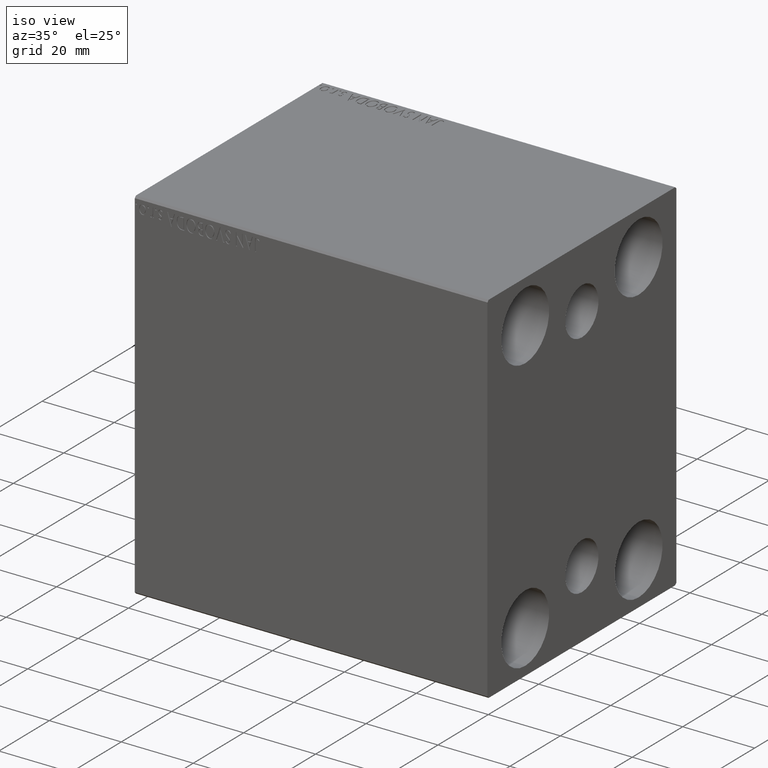
[diagram: clean part render]
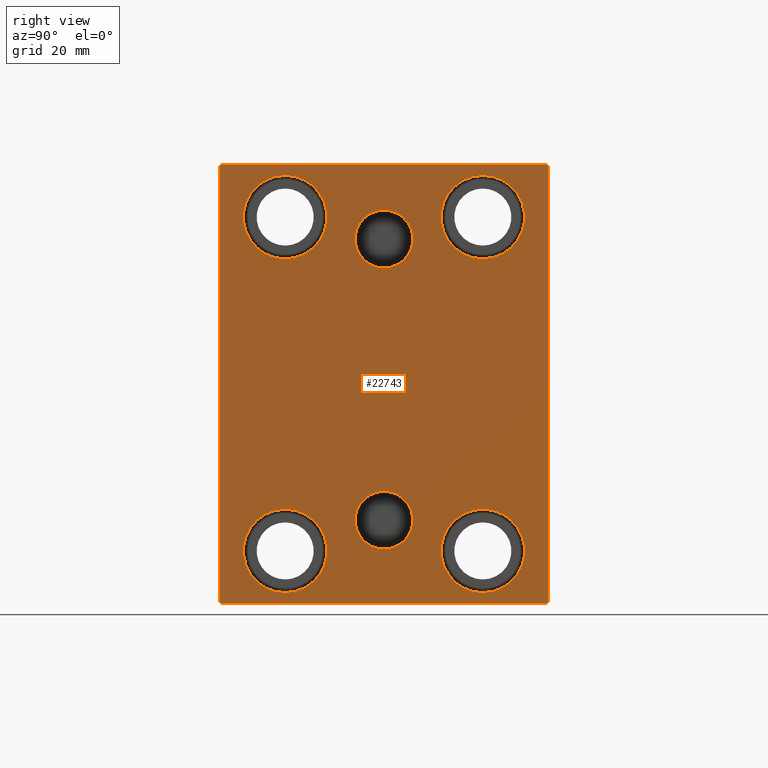
[diagram: tour spotlight — one face highlighted and labeled with its STEP entity id]
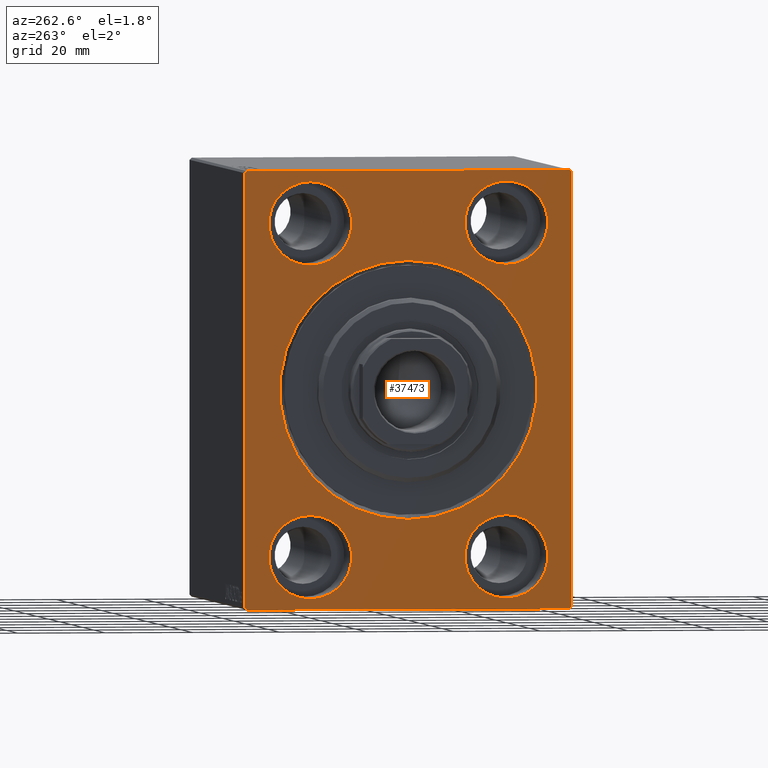
[diagram: tour spotlight — one face highlighted and labeled with its STEP entity id]
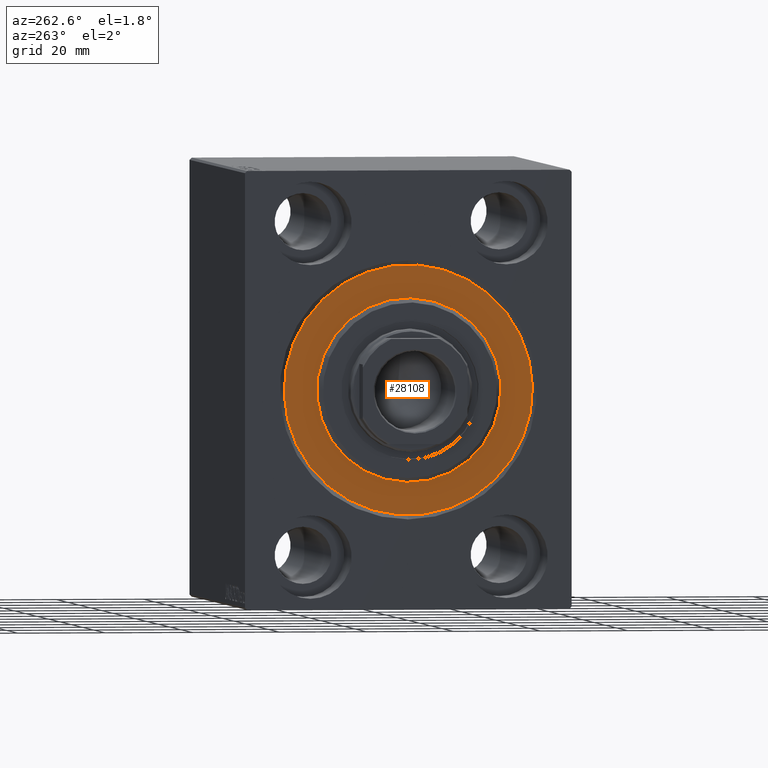
[diagram: tour spotlight — one face highlighted and labeled with its STEP entity id]
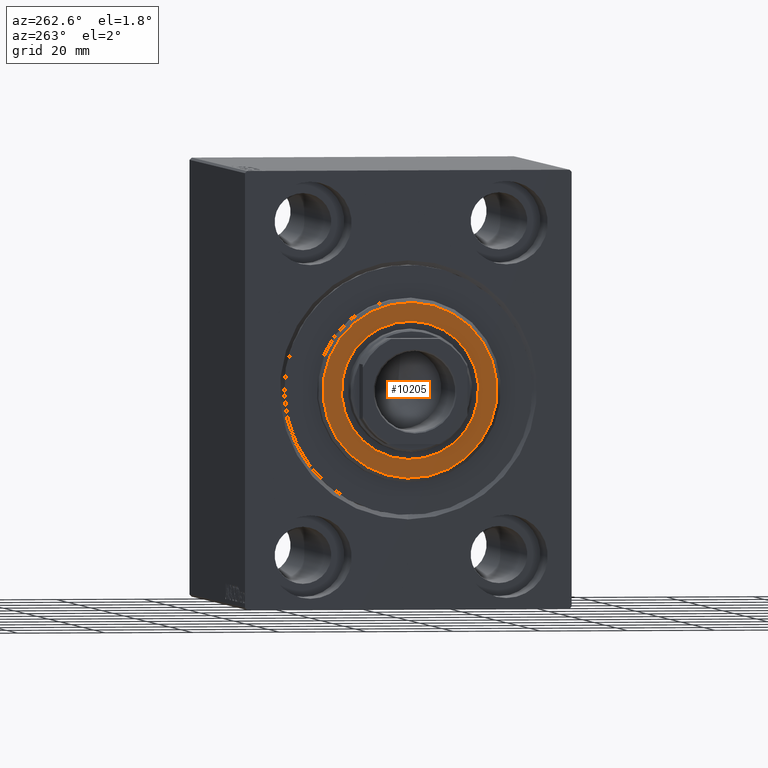
[diagram: tour spotlight — one face highlighted and labeled with its STEP entity id]
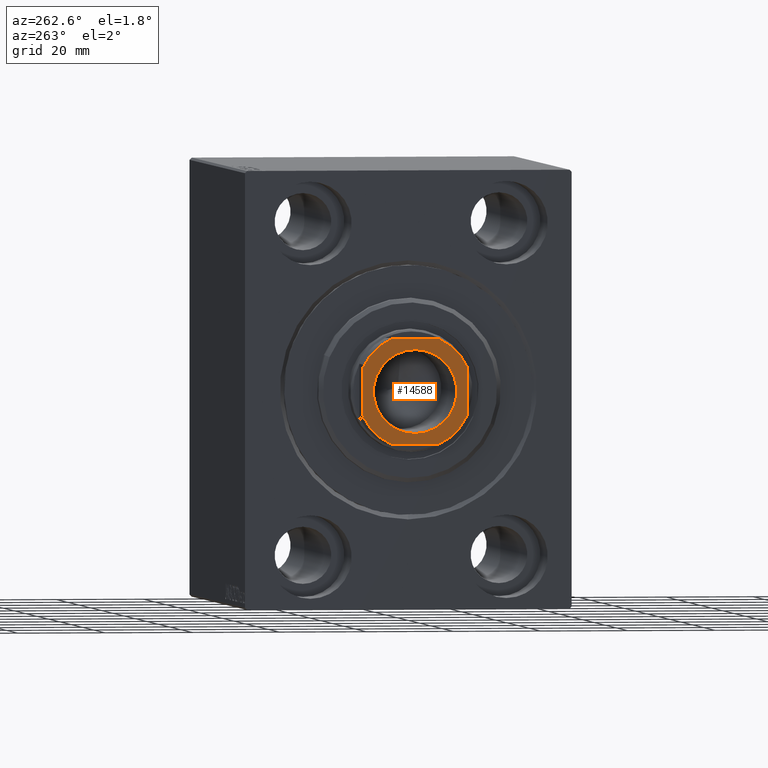
[diagram: tour spotlight — one face highlighted and labeled with its STEP entity id]
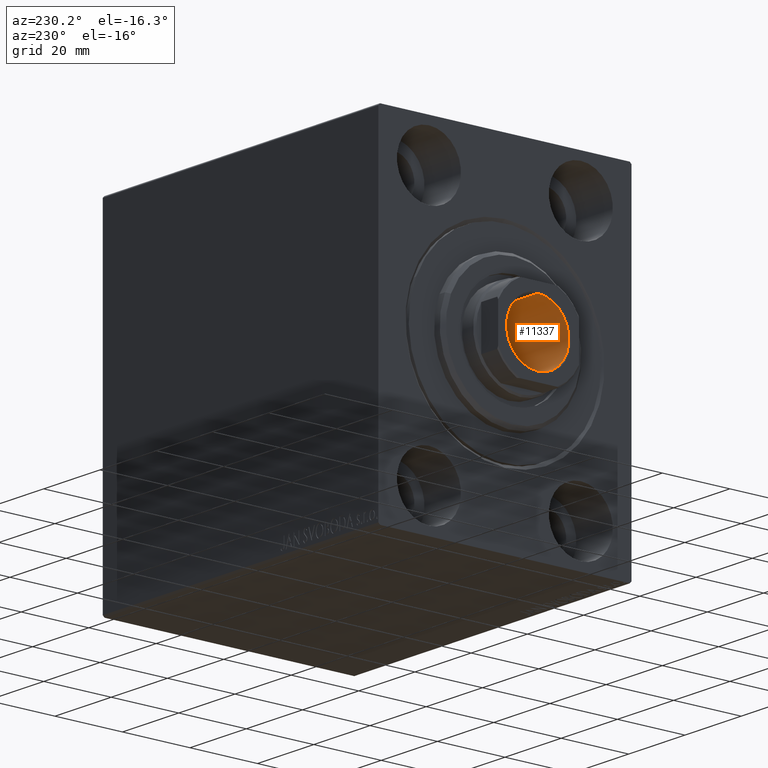
[diagram: tour spotlight — one face highlighted and labeled with its STEP entity id]
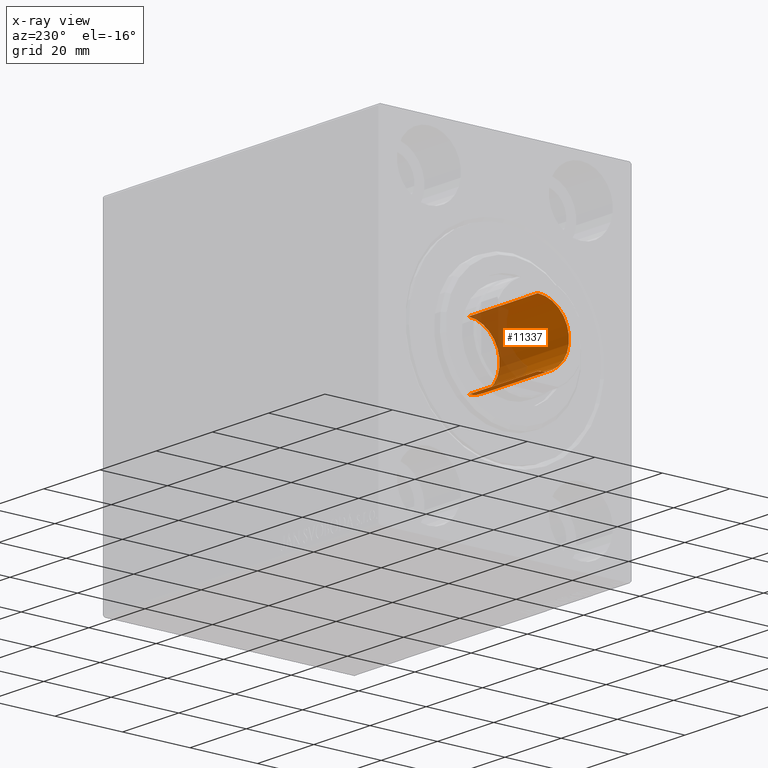
[diagram: x-ray of the same camera — body ghosted, this tour face saturated]
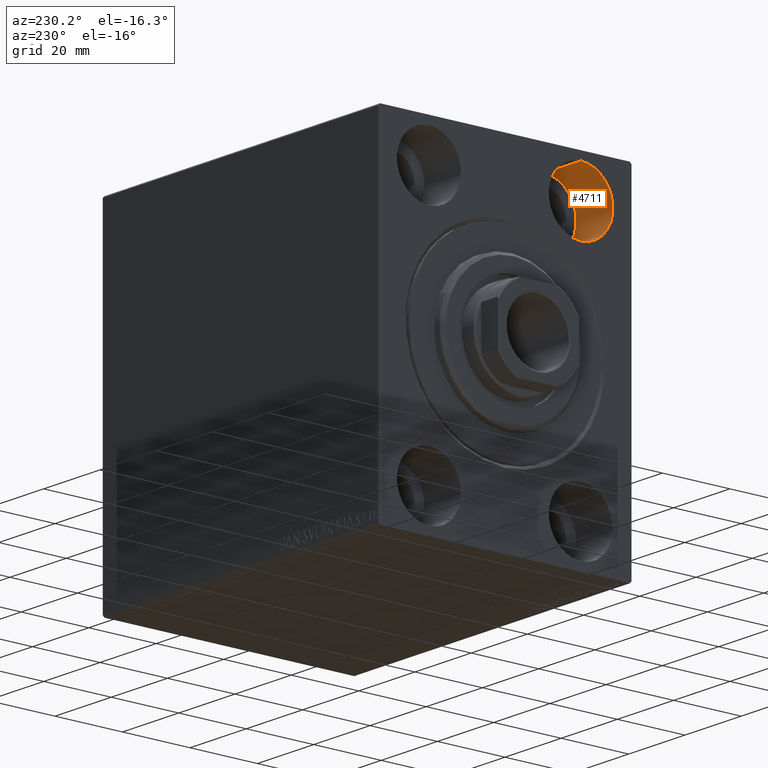
[diagram: tour spotlight — one face highlighted and labeled with its STEP entity id]
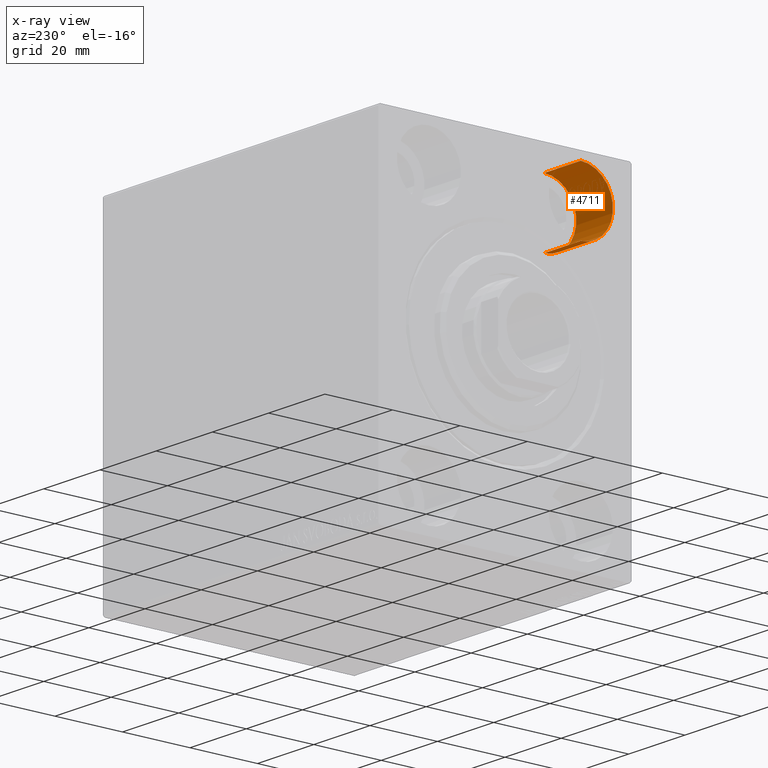
[diagram: x-ray of the same camera — body ghosted, this tour face saturated]
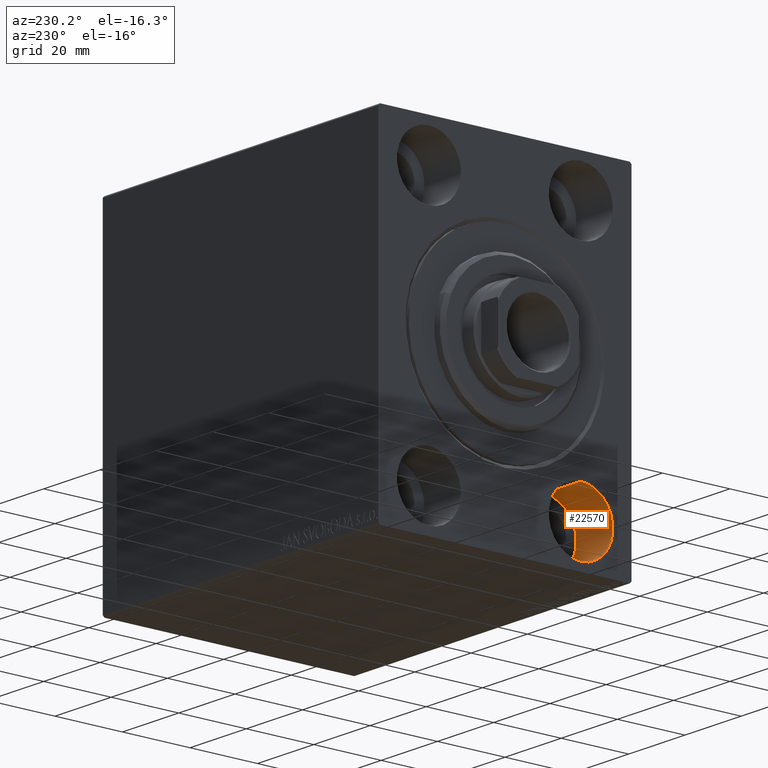
[diagram: tour spotlight — one face highlighted and labeled with its STEP entity id]
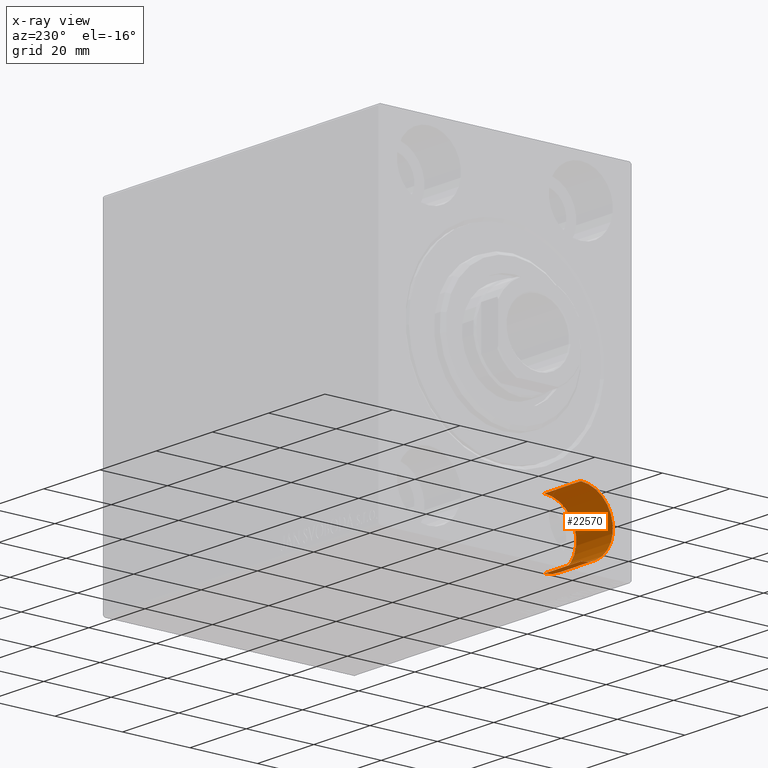
[diagram: x-ray of the same camera — body ghosted, this tour face saturated]
A machine part: a face-by-face anatomy tour. The part has 855 B-rep faces; the first image is the clean iso view, then the 8 largest visible faces are spotlighted one at a time (largest first), each with its STEP entity span.

Face 1 — right view, entity #22743. In plain terms, the highlighted planar face has unit normal (1, 0, 0).
Definition (entity closure, byte-faithful):
#52 = VECTOR ( 'NONE', #28760, 1000.000000000000114 ) ;
#131 = DIRECTION ( 'NONE',  ( -1.000000000000000000, -0.000000000000000000, -0.000000000000000000 ) ) ;
#260 = FACE_BOUND ( 'NONE', #14670, .T. ) ;
#623 = VERTEX_POINT ( 'NONE', #3754 ) ;
#642 = VECTOR ( 'NONE', #26077, 1000.000000000000000 ) ;
#1036 = VERTEX_POINT ( 'NONE', #11368 ) ;
#1242 = VERTEX_POINT ( 'NONE', #6692 ) ;
#1446 = DIRECTION ( 'NONE',  ( 0.000000000000000000, 0.000000000000000000, -1.000000000000000000 ) ) ;
#1588 = AXIS2_PLACEMENT_3D ( 'NONE', #41020, #30416, #37256 ) ;
#1664 = LINE ( 'NONE', #25268, #16465 ) ;
#2009 = CARTESIAN_POINT ( 'NONE',  ( 98.00000000000000000, 22.49999999999999645, -37.99999999999999289 ) ) ;
#2131 = ORIENTED_EDGE ( 'NONE', *, *, #10677, .T. ) ;
#2176 = AXIS2_PLACEMENT_3D ( 'NONE', #22380, #19077, #2295 ) ;
#2295 = DIRECTION ( 'NONE',  ( 0.000000000000000000, 0.000000000000000000, 1.000000000000000000 ) ) ;
#2346 = AXIS2_PLACEMENT_3D ( 'NONE', #42124, #11883, #9883 ) ;
#2687 = ORIENTED_EDGE ( 'NONE', *, *, #30078, .T. ) ;
#2751 = DIRECTION ( 'NONE',  ( 0.000000000000000000, -1.000000000000000000, -1.850371707708594316E-16 ) ) ;
#3418 = ORIENTED_EDGE ( 'NONE', *, *, #6823, .T. ) ;
#3426 = CARTESIAN_POINT ( 'NONE',  ( 98.00000000000000000, 22.50000000000000355, 37.99999999999999289 ) ) ;
#3754 = CARTESIAN_POINT ( 'NONE',  ( 98.00000000000000000, 37.49999999999999289, 49.50000000000000000 ) ) ;
#3782 = DIRECTION ( 'NONE',  ( 0.000000000000000000, 0.000000000000000000, -1.000000000000000000 ) ) ;
#3944 = EDGE_CURVE ( 'NONE', #1036, #623, #8205, .T. ) ;
#4842 = EDGE_CURVE ( 'NONE', #19444, #16947, #8404, .T. ) ;
#5033 = VERTEX_POINT ( 'NONE', #34001 ) ;
#5474 = ORIENTED_EDGE ( 'NONE', *, *, #36014, .T. ) ;
#5499 = CARTESIAN_POINT ( 'NONE',  ( 98.00000000000000000, -22.50000000000000711, -37.99999999999999289 ) ) ;
#5966 = CARTESIAN_POINT ( 'NONE',  ( 98.00000000000000000, 4.602222671195751790E-15, -24.41999999999999105 ) ) ;
#6034 = EDGE_CURVE ( 'NONE', #11399, #1036, #25027, .T. ) ;
#6445 = FACE_BOUND ( 'NONE', #7960, .T. ) ;
#6692 = CARTESIAN_POINT ( 'NONE',  ( 98.00000000000000000, -4.500599556835685525E-15, 39.58000000000000540 ) ) ;
#6823 = EDGE_CURVE ( 'NONE', #19422, #38680, #33139, .T. ) ;
#7410 = EDGE_LOOP ( 'NONE', ( #24166, #25835 ) ) ;
#7463 = CARTESIAN_POINT ( 'NONE',  ( 98.00000000000000000, -5.306417150674643778E-15, 26.42000000000000881 ) ) ;
#7569 = ORIENTED_EDGE ( 'NONE', *, *, #41141, .T. ) ;
#7960 = EDGE_LOOP ( 'NONE', ( #39228, #13148 ) ) ;
#8157 = ORIENTED_EDGE ( 'NONE', *, *, #4842, .T. ) ;
#8205 = LINE ( 'NONE', #12615, #642 ) ;
#8221 = ORIENTED_EDGE ( 'NONE', *, *, #31050, .T. ) ;
#8404 = CIRCLE ( 'NONE', #41526, 9.500000000000001776 ) ;
#8572 = AXIS2_PLACEMENT_3D ( 'NONE', #28299, #38900, #15056 ) ;
#8712 = VECTOR ( 'NONE', #2751, 1000.000000000000000 ) ;
#8901 = EDGE_LOOP ( 'NONE', ( #8157, #36581 ) ) ;
#9132 = AXIS2_PLACEMENT_3D ( 'NONE', #36894, #13501, #3782 ) ;
#9492 = EDGE_CURVE ( 'NONE', #33357, #10679, #31093, .T. ) ;
#9842 = EDGE_LOOP ( 'NONE', ( #5474, #36868 ) ) ;
#9883 = DIRECTION ( 'NONE',  ( 0.000000000000000000, 0.000000000000000000, 1.000000000000000000 ) ) ;
#10643 = ORIENTED_EDGE ( 'NONE', *, *, #40330, .T. ) ;
#10661 = VERTEX_POINT ( 'NONE', #18588 ) ;
#10677 = EDGE_CURVE ( 'NONE', #38680, #19422, #21959, .T. ) ;
#10679 = VERTEX_POINT ( 'NONE', #28950 ) ;
#11368 = CARTESIAN_POINT ( 'NONE',  ( 98.00000000000000000, 37.50000000000000711, -49.50000000000000000 ) ) ;
#11399 = VERTEX_POINT ( 'NONE', #14207 ) ;
#11542 = ORIENTED_EDGE ( 'NONE', *, *, #6034, .T. ) ;
#11745 = CARTESIAN_POINT ( 'NONE',  ( 98.00000000000000000, 22.50000000000000355, 37.99999999999999289 ) ) ;
#11883 = DIRECTION ( 'NONE',  ( -1.000000000000000000, -0.000000000000000000, -0.000000000000000000 ) ) ;
#12047 = VERTEX_POINT ( 'NONE', #7463 ) ;
#12221 = ORIENTED_EDGE ( 'NONE', *, *, #17877, .F. ) ;
#12504 = CIRCLE ( 'NONE', #39319, 6.580000000000002736 ) ;
#12615 = CARTESIAN_POINT ( 'NONE',  ( 98.00000000000000000, 37.50000000000000711, -50.00000000000000000 ) ) ;
#13065 = FACE_BOUND ( 'NONE', #8901, .T. ) ;
#13148 = ORIENTED_EDGE ( 'NONE', *, *, #15898, .F. ) ;
#13182 = CARTESIAN_POINT ( 'NONE',  ( 98.00000000000000000, -22.50000000000000711, -28.49999999999998934 ) ) ;
#13401 = ORIENTED_EDGE ( 'NONE', *, *, #35316, .T. ) ;
#13501 = DIRECTION ( 'NONE',  ( 1.000000000000000000, 0.000000000000000000, 0.000000000000000000 ) ) ;
#13828 = VERTEX_POINT ( 'NONE', #14378 ) ;
#14207 = CARTESIAN_POINT ( 'NONE',  ( 98.00000000000000000, 37.00000000000000711, -50.00000000000000000 ) ) ;
#14378 = CARTESIAN_POINT ( 'NONE',  ( 98.00000000000000000, -22.50000000000000711, -47.49999999999999289 ) ) ;
#14453 = DIRECTION ( 'NONE',  ( -0.000000000000000000, 0.7071067811865474617, 0.7071067811865474617 ) ) ;
#14670 = EDGE_LOOP ( 'NONE', ( #12221, #23951 ) ) ;
#14885 = EDGE_CURVE ( 'NONE', #16947, #19444, #35717, .T. ) ;
#15012 = VERTEX_POINT ( 'NONE', #43292 ) ;
#15056 = DIRECTION ( 'NONE',  ( 0.000000000000000000, 0.000000000000000000, 1.000000000000000000 ) ) ;
#15389 = DIRECTION ( 'NONE',  ( 0.000000000000000000, 0.000000000000000000, 1.000000000000000000 ) ) ;
#15575 = CARTESIAN_POINT ( 'NONE',  ( 98.00000000000000000, -22.49999999999999645, 28.49999999999998934 ) ) ;
#15898 = EDGE_CURVE ( 'NONE', #1242, #12047, #42084, .T. ) ;
#16390 = FACE_BOUND ( 'NONE', #36920, .T. ) ;
#16465 = VECTOR ( 'NONE', #1446, 1000.000000000000000 ) ;
#16947 = VERTEX_POINT ( 'NONE', #40745 ) ;
#17559 = DIRECTION ( 'NONE',  ( 0.000000000000000000, -0.7071067811865474617, -0.7071067811865474617 ) ) ;
#17877 = EDGE_CURVE ( 'NONE', #10679, #33357, #12504, .T. ) ;
#18325 = VECTOR ( 'NONE', #19326, 1000.000000000000000 ) ;
#18588 = CARTESIAN_POINT ( 'NONE',  ( 98.00000000000000000, -36.99999999999999289, 49.99999999999999289 ) ) ;
#18802 = DIRECTION ( 'NONE',  ( 0.000000000000000000, 0.000000000000000000, 1.000000000000000000 ) ) ;
#18853 = VERTEX_POINT ( 'NONE', #21316 ) ;
#19012 = DIRECTION ( 'NONE',  ( 0.000000000000000000, 0.000000000000000000, 1.000000000000000000 ) ) ;
#19049 = CARTESIAN_POINT ( 'NONE',  ( 98.00000000000000000, -5.306417150674643778E-15, 33.00000000000000711 ) ) ;
#19077 = DIRECTION ( 'NONE',  ( 1.000000000000000000, 0.000000000000000000, -0.000000000000000000 ) ) ;
#19269 = CIRCLE ( 'NONE', #31234, 6.579999999999999183 ) ;
#19326 = DIRECTION ( 'NONE',  ( 0.000000000000000000, 1.000000000000000000, 9.251858538542970348E-17 ) ) ;
#19401 = DIRECTION ( 'NONE',  ( 0.000000000000000000, 0.000000000000000000, 1.000000000000000000 ) ) ;
#19422 = VERTEX_POINT ( 'NONE', #32781 ) ;
#19431 = CARTESIAN_POINT ( 'NONE',  ( 98.00000000000000000, 22.49999999999999645, -28.49999999999998934 ) ) ;
#19444 = VERTEX_POINT ( 'NONE', #23063 ) ;
#19451 = VERTEX_POINT ( 'NONE', #33635 ) ;
#19525 = LINE ( 'NONE', #26582, #8712 ) ;
#20032 = ORIENTED_EDGE ( 'NONE', *, *, #3944, .T. ) ;
#20605 = EDGE_CURVE ( 'NONE', #30702, #19451, #36526, .T. ) ;
#21316 = CARTESIAN_POINT ( 'NONE',  ( 98.00000000000000000, 36.99999999999999289, 50.00000000000000711 ) ) ;
#21959 = CIRCLE ( 'NONE', #8572, 9.500000000000001776 ) ;
#22380 = CARTESIAN_POINT ( 'NONE',  ( 98.00000000000000000, 3.796405077356792748E-15, -30.99999999999999289 ) ) ;
#22389 = DIRECTION ( 'NONE',  ( 1.000000000000000000, 0.000000000000000000, 0.000000000000000000 ) ) ;
#22743 = ADVANCED_FACE ( 'NONE', ( #6445, #260, #27174, #16390, #13065, #29843, #40874 ), #40653, .T. ) ;
#22870 = DIRECTION ( 'NONE',  ( 0.000000000000000000, 0.000000000000000000, 1.000000000000000000 ) ) ;
#23063 = CARTESIAN_POINT ( 'NONE',  ( 98.00000000000000000, 22.50000000000000355, 28.49999999999998934 ) ) ;
#23140 = DIRECTION ( 'NONE',  ( -1.000000000000000000, -0.000000000000000000, -0.000000000000000000 ) ) ;
#23951 = ORIENTED_EDGE ( 'NONE', *, *, #9492, .F. ) ;
#24166 = ORIENTED_EDGE ( 'NONE', *, *, #36193, .T. ) ;
#24292 = VERTEX_POINT ( 'NONE', #13182 ) ;
#25027 = LINE ( 'NONE', #41813, #36603 ) ;
#25037 = CARTESIAN_POINT ( 'NONE',  ( 98.00000000000000000, -22.49999999999999645, 37.99999999999999289 ) ) ;
#25268 = CARTESIAN_POINT ( 'NONE',  ( 98.00000000000000000, -37.50000000000000711, 49.99999999999999289 ) ) ;
#25536 = CIRCLE ( 'NONE', #28368, 9.500000000000001776 ) ;
#25764 = CARTESIAN_POINT ( 'NONE',  ( 98.00000000000000000, 3.796405077356792748E-15, -30.99999999999999289 ) ) ;
#25835 = ORIENTED_EDGE ( 'NONE', *, *, #20605, .T. ) ;
#25876 = DIRECTION ( 'NONE',  ( 1.000000000000000000, 0.000000000000000000, 0.000000000000000000 ) ) ;
#26077 = DIRECTION ( 'NONE',  ( 0.000000000000000000, -1.387778780781445676E-16, 1.000000000000000000 ) ) ;
#26568 = VERTEX_POINT ( 'NONE', #31176 ) ;
#26582 = CARTESIAN_POINT ( 'NONE',  ( 98.00000000000000000, 37.49999999999999289, 50.00000000000000711 ) ) ;
#27174 = FACE_BOUND ( 'NONE', #7410, .T. ) ;
#28299 = CARTESIAN_POINT ( 'NONE',  ( 98.00000000000000000, -22.49999999999999645, 37.99999999999999289 ) ) ;
#28368 = AXIS2_PLACEMENT_3D ( 'NONE', #5499, #23140, #19401 ) ;
#28544 = CARTESIAN_POINT ( 'NONE',  ( 98.00000000000000000, -43.50000000000000000, -43.50000000000000000 ) ) ;
#28760 = DIRECTION ( 'NONE',  ( -0.000000000000000000, 0.7071067811865474617, -0.7071067811865474617 ) ) ;
#28807 = CARTESIAN_POINT ( 'NONE',  ( 98.00000000000000000, -37.50000000000000711, -50.00000000000000711 ) ) ;
#28815 = ORIENTED_EDGE ( 'NONE', *, *, #33676, .T. ) ;
#28882 = AXIS2_PLACEMENT_3D ( 'NONE', #25037, #41607, #35624 ) ;
#28950 = CARTESIAN_POINT ( 'NONE',  ( 98.00000000000000000, 3.796405077356792748E-15, -37.57999999999999829 ) ) ;
#29843 = FACE_BOUND ( 'NONE', #9842, .T. ) ;
#30078 = EDGE_CURVE ( 'NONE', #15012, #11399, #42512, .T. ) ;
#30415 = VECTOR ( 'NONE', #36951, 999.9999999999998863 ) ;
#30416 = DIRECTION ( 'NONE',  ( -1.000000000000000000, -0.000000000000000000, -0.000000000000000000 ) ) ;
#30702 = VERTEX_POINT ( 'NONE', #19431 ) ;
#31050 = EDGE_CURVE ( 'NONE', #26568, #15012, #39364, .T. ) ;
#31093 = CIRCLE ( 'NONE', #2176, 6.580000000000002736 ) ;
#31176 = CARTESIAN_POINT ( 'NONE',  ( 98.00000000000000000, -37.50000000000000711, -49.49999999999999289 ) ) ;
#31234 = AXIS2_PLACEMENT_3D ( 'NONE', #19049, #25876, #36252 ) ;
#32090 = DIRECTION ( 'NONE',  ( 0.000000000000000000, 0.000000000000000000, -1.000000000000000000 ) ) ;
#32308 = CARTESIAN_POINT ( 'NONE',  ( 98.00000000000000000, -5.306417150674643778E-15, 33.00000000000000711 ) ) ;
#32766 = LINE ( 'NONE', #43363, #30415 ) ;
#32781 = CARTESIAN_POINT ( 'NONE',  ( 98.00000000000000000, -22.49999999999999645, 47.49999999999999289 ) ) ;
#33139 = CIRCLE ( 'NONE', #28882, 9.500000000000001776 ) ;
#33357 = VERTEX_POINT ( 'NONE', #5966 ) ;
#33635 = CARTESIAN_POINT ( 'NONE',  ( 98.00000000000000000, 22.49999999999999645, -47.49999999999999289 ) ) ;
#33676 = EDGE_CURVE ( 'NONE', #623, #18853, #32766, .T. ) ;
#33714 = AXIS2_PLACEMENT_3D ( 'NONE', #2009, #35335, #19012 ) ;
#34001 = CARTESIAN_POINT ( 'NONE',  ( 98.00000000000000000, -37.50000000000000711, 49.49999999999997868 ) ) ;
#35316 = EDGE_CURVE ( 'NONE', #10661, #5033, #40134, .T. ) ;
#35335 = DIRECTION ( 'NONE',  ( -1.000000000000000000, -0.000000000000000000, -0.000000000000000000 ) ) ;
#35359 = VECTOR ( 'NONE', #17559, 1000.000000000000114 ) ;
#35624 = DIRECTION ( 'NONE',  ( 0.000000000000000000, 0.000000000000000000, 1.000000000000000000 ) ) ;
#35717 = CIRCLE ( 'NONE', #38531, 9.500000000000001776 ) ;
#36014 = EDGE_CURVE ( 'NONE', #13828, #24292, #25536, .T. ) ;
#36193 = EDGE_CURVE ( 'NONE', #19451, #30702, #43160, .T. ) ;
#36252 = DIRECTION ( 'NONE',  ( 0.000000000000000000, 0.000000000000000000, -1.000000000000000000 ) ) ;
#36526 = CIRCLE ( 'NONE', #33714, 9.500000000000001776 ) ;
#36581 = ORIENTED_EDGE ( 'NONE', *, *, #14885, .T. ) ;
#36603 = VECTOR ( 'NONE', #14453, 1000.000000000000114 ) ;
#36722 = DIRECTION ( 'NONE',  ( 1.000000000000000000, 0.000000000000000000, -0.000000000000000000 ) ) ;
#36868 = ORIENTED_EDGE ( 'NONE', *, *, #39511, .T. ) ;
#36894 = CARTESIAN_POINT ( 'NONE',  ( 98.00000000000000000, 0.000000000000000000, 0.000000000000000000 ) ) ;
#36920 = EDGE_LOOP ( 'NONE', ( #2131, #3418 ) ) ;
#36951 = DIRECTION ( 'NONE',  ( -0.000000000000000000, -0.7071067811865425767, 0.7071067811865525687 ) ) ;
#37256 = DIRECTION ( 'NONE',  ( 0.000000000000000000, 0.000000000000000000, 1.000000000000000000 ) ) ;
#37437 = EDGE_LOOP ( 'NONE', ( #7569, #13401, #10643, #8221, #2687, #11542, #20032, #28815 ) ) ;
#38243 = DIRECTION ( 'NONE',  ( -1.000000000000000000, -0.000000000000000000, -0.000000000000000000 ) ) ;
#38531 = AXIS2_PLACEMENT_3D ( 'NONE', #3426, #131, #22870 ) ;
#38558 = AXIS2_PLACEMENT_3D ( 'NONE', #32308, #22389, #32090 ) ;
#38680 = VERTEX_POINT ( 'NONE', #15575 ) ;
#38900 = DIRECTION ( 'NONE',  ( -1.000000000000000000, -0.000000000000000000, -0.000000000000000000 ) ) ;
#39228 = ORIENTED_EDGE ( 'NONE', *, *, #43276, .F. ) ;
#39319 = AXIS2_PLACEMENT_3D ( 'NONE', #25764, #36722, #15389 ) ;
#39364 = LINE ( 'NONE', #28544, #52 ) ;
#39511 = EDGE_CURVE ( 'NONE', #24292, #13828, #42530, .T. ) ;
#39917 = CARTESIAN_POINT ( 'NONE',  ( 98.00000000000000000, -43.49999999999998579, 43.49999999999998579 ) ) ;
#40134 = LINE ( 'NONE', #39917, #35359 ) ;
#40330 = EDGE_CURVE ( 'NONE', #5033, #26568, #1664, .T. ) ;
#40653 = PLANE ( 'NONE',  #9132 ) ;
#40745 = CARTESIAN_POINT ( 'NONE',  ( 98.00000000000000000, 22.50000000000000355, 47.49999999999999289 ) ) ;
#40874 = FACE_OUTER_BOUND ( 'NONE', #37437, .T. ) ;
#41020 = CARTESIAN_POINT ( 'NONE',  ( 98.00000000000000000, 22.49999999999999645, -37.99999999999999289 ) ) ;
#41141 = EDGE_CURVE ( 'NONE', #18853, #10661, #19525, .T. ) ;
#41526 = AXIS2_PLACEMENT_3D ( 'NONE', #11745, #38243, #18802 ) ;
#41607 = DIRECTION ( 'NONE',  ( -1.000000000000000000, -0.000000000000000000, -0.000000000000000000 ) ) ;
#41813 = CARTESIAN_POINT ( 'NONE',  ( 98.00000000000000000, 43.50000000000000711, -43.50000000000000711 ) ) ;
#42084 = CIRCLE ( 'NONE', #38558, 6.579999999999999183 ) ;
#42124 = CARTESIAN_POINT ( 'NONE',  ( 98.00000000000000000, -22.50000000000000711, -37.99999999999999289 ) ) ;
#42512 = LINE ( 'NONE', #28807, #18325 ) ;
#42530 = CIRCLE ( 'NONE', #2346, 9.500000000000001776 ) ;
#43160 = CIRCLE ( 'NONE', #1588, 9.500000000000001776 ) ;
#43276 = EDGE_CURVE ( 'NONE', #12047, #1242, #19269, .T. ) ;
#43292 = CARTESIAN_POINT ( 'NONE',  ( 98.00000000000000000, -36.99999999999999289, -50.00000000000000711 ) ) ;
#43363 = CARTESIAN_POINT ( 'NONE',  ( 98.00000000000000000, 43.50000000000026290, 43.49999999999965894 ) ) ;

Face 2 — auxiliary view, entity #37473. In plain terms, the highlighted planar face has unit normal (1, 0, 0).
Definition (entity closure, byte-faithful):
#146 = DIRECTION ( 'NONE',  ( 1.000000000000000000, 0.000000000000000000, 0.000000000000000000 ) ) ;
#206 = CARTESIAN_POINT ( 'NONE',  ( 0.000000000000000000, -22.50000000000000711, -37.99999999999999289 ) ) ;
#711 = ORIENTED_EDGE ( 'NONE', *, *, #21179, .F. ) ;
#857 = PLANE ( 'NONE',  #40389 ) ;
#1049 = ORIENTED_EDGE ( 'NONE', *, *, #25845, .F. ) ;
#1281 = CARTESIAN_POINT ( 'NONE',  ( 0.000000000000000000, 0.000000000000000000, 0.000000000000000000 ) ) ;
#1312 = CARTESIAN_POINT ( 'NONE',  ( 0.000000000000000000, -22.49999999999999645, 37.99999999999999289 ) ) ;
#1502 = CIRCLE ( 'NONE', #31795, 9.500000000000001776 ) ;
#1687 = ORIENTED_EDGE ( 'NONE', *, *, #27519, .F. ) ;
#1991 = DIRECTION ( 'NONE',  ( 0.000000000000000000, -1.387778780781445676E-16, 1.000000000000000000 ) ) ;
#2164 = ORIENTED_EDGE ( 'NONE', *, *, #11434, .T. ) ;
#2170 = CARTESIAN_POINT ( 'NONE',  ( 0.000000000000000000, -37.50000000000000711, -50.00000000000000711 ) ) ;
#2196 = ORIENTED_EDGE ( 'NONE', *, *, #21960, .F. ) ;
#2573 = LINE ( 'NONE', #36933, #18436 ) ;
#2880 = AXIS2_PLACEMENT_3D ( 'NONE', #9975, #20332, #13716 ) ;
#3044 = CARTESIAN_POINT ( 'NONE',  ( 0.000000000000000000, -22.50000000000000711, -47.49999999999999289 ) ) ;
#3893 = CARTESIAN_POINT ( 'NONE',  ( 0.000000000000000000, 0.000000000000000000, 29.50000000000001421 ) ) ;
#4164 = DIRECTION ( 'NONE',  ( -1.000000000000000000, 0.000000000000000000, 0.000000000000000000 ) ) ;
#4242 = EDGE_CURVE ( 'NONE', #14512, #37277, #37999, .T. ) ;
#4408 = DIRECTION ( 'NONE',  ( 0.000000000000000000, 0.000000000000000000, -1.000000000000000000 ) ) ;
#4680 = VERTEX_POINT ( 'NONE', #16259 ) ;
#5521 = CARTESIAN_POINT ( 'NONE',  ( 0.000000000000000000, 37.50000000000000711, -50.00000000000000000 ) ) ;
#5550 = CARTESIAN_POINT ( 'NONE',  ( 0.000000000000000000, 22.49999999999999645, -37.99999999999999289 ) ) ;
#5573 = ORIENTED_EDGE ( 'NONE', *, *, #9569, .F. ) ;
#5645 = CIRCLE ( 'NONE', #38066, 9.500000000000001776 ) ;
#6087 = VERTEX_POINT ( 'NONE', #22817 ) ;
#6148 = DIRECTION ( 'NONE',  ( 0.000000000000000000, -1.000000000000000000, -1.850371707708594316E-16 ) ) ;
#6997 = AXIS2_PLACEMENT_3D ( 'NONE', #21398, #17667, #11472 ) ;
#7012 = LINE ( 'NONE', #23789, #42054 ) ;
#7013 = VECTOR ( 'NONE', #1991, 1000.000000000000000 ) ;
#7336 = EDGE_CURVE ( 'NONE', #14526, #39468, #5645, .T. ) ;
#7402 = VERTEX_POINT ( 'NONE', #15215 ) ;
#7631 = LINE ( 'NONE', #27930, #30573 ) ;
#7656 = ORIENTED_EDGE ( 'NONE', *, *, #7855, .T. ) ;
#7740 = LINE ( 'NONE', #21202, #40801 ) ;
#7855 = EDGE_CURVE ( 'NONE', #37635, #43285, #36635, .T. ) ;
#8347 = CARTESIAN_POINT ( 'NONE',  ( 0.000000000000000000, 22.49999999999999645, -47.49999999999999289 ) ) ;
#8426 = ORIENTED_EDGE ( 'NONE', *, *, #4242, .F. ) ;
#9429 = CARTESIAN_POINT ( 'NONE',  ( 0.000000000000000000, 0.000000000000000000, 0.000000000000000000 ) ) ;
#9556 = EDGE_CURVE ( 'NONE', #43285, #37635, #25456, .T. ) ;
#9569 = EDGE_CURVE ( 'NONE', #23122, #15326, #30372, .T. ) ;
#9975 = CARTESIAN_POINT ( 'NONE',  ( 0.000000000000000000, -22.49999999999999645, 37.99999999999999289 ) ) ;
#10699 = VERTEX_POINT ( 'NONE', #38026 ) ;
#10788 = DIRECTION ( 'NONE',  ( 1.000000000000000000, 0.000000000000000000, 0.000000000000000000 ) ) ;
#10817 = EDGE_LOOP ( 'NONE', ( #15862, #1049 ) ) ;
#10888 = ORIENTED_EDGE ( 'NONE', *, *, #33115, .F. ) ;
#10955 = ORIENTED_EDGE ( 'NONE', *, *, #31474, .T. ) ;
#11203 = CIRCLE ( 'NONE', #35870, 9.500000000000001776 ) ;
#11417 = CARTESIAN_POINT ( 'NONE',  ( 0.000000000000000000, 22.50000000000000355, 37.99999999999999289 ) ) ;
#11434 = EDGE_CURVE ( 'NONE', #21438, #4680, #2573, .T. ) ;
#11472 = DIRECTION ( 'NONE',  ( 0.000000000000000000, 0.000000000000000000, 1.000000000000000000 ) ) ;
#11650 = FACE_BOUND ( 'NONE', #30224, .T. ) ;
#11894 = CIRCLE ( 'NONE', #22491, 9.500000000000001776 ) ;
#12332 = LINE ( 'NONE', #2170, #42236 ) ;
#12351 = CARTESIAN_POINT ( 'NONE',  ( 0.000000000000000000, -22.49999999999999645, 28.49999999999998934 ) ) ;
#13529 = CARTESIAN_POINT ( 'NONE',  ( 0.000000000000000000, 22.50000000000000355, 47.49999999999999289 ) ) ;
#13716 = DIRECTION ( 'NONE',  ( 0.000000000000000000, 0.000000000000000000, 1.000000000000000000 ) ) ;
#14314 = FACE_OUTER_BOUND ( 'NONE', #33442, .T. ) ;
#14494 = EDGE_CURVE ( 'NONE', #21438, #16077, #7012, .T. ) ;
#14512 = VERTEX_POINT ( 'NONE', #3044 ) ;
#14526 = VERTEX_POINT ( 'NONE', #33490 ) ;
#15178 = ORIENTED_EDGE ( 'NONE', *, *, #22932, .F. ) ;
#15215 = CARTESIAN_POINT ( 'NONE',  ( 0.000000000000000000, -37.50000000000000711, -49.49999999999999289 ) ) ;
#15326 = VERTEX_POINT ( 'NONE', #12351 ) ;
#15862 = ORIENTED_EDGE ( 'NONE', *, *, #7336, .F. ) ;
#16077 = VERTEX_POINT ( 'NONE', #31181 ) ;
#16100 = DIRECTION ( 'NONE',  ( -1.000000000000000000, 0.000000000000000000, 0.000000000000000000 ) ) ;
#16259 = CARTESIAN_POINT ( 'NONE',  ( 0.000000000000000000, 37.49999999999999289, 49.50000000000000000 ) ) ;
#16391 = CARTESIAN_POINT ( 'NONE',  ( 0.000000000000000000, 3.612708057484693970E-15, -29.50000000000001421 ) ) ;
#17120 = VERTEX_POINT ( 'NONE', #40256 ) ;
#17667 = DIRECTION ( 'NONE',  ( -1.000000000000000000, 0.000000000000000000, 0.000000000000000000 ) ) ;
#18284 = CARTESIAN_POINT ( 'NONE',  ( 0.000000000000000000, -22.49999999999999645, 47.49999999999999289 ) ) ;
#18305 = CARTESIAN_POINT ( 'NONE',  ( 0.000000000000000000, 37.50000000000000711, -49.50000000000000000 ) ) ;
#18436 = VECTOR ( 'NONE', #32588, 999.9999999999998863 ) ;
#18547 = EDGE_CURVE ( 'NONE', #37277, #14512, #31544, .T. ) ;
#19294 = EDGE_CURVE ( 'NONE', #35181, #31558, #25514, .T. ) ;
#19566 = DIRECTION ( 'NONE',  ( 0.000000000000000000, 0.000000000000000000, -1.000000000000000000 ) ) ;
#20332 = DIRECTION ( 'NONE',  ( -1.000000000000000000, 0.000000000000000000, 0.000000000000000000 ) ) ;
#21179 = EDGE_CURVE ( 'NONE', #29517, #17120, #11894, .T. ) ;
#21202 = CARTESIAN_POINT ( 'NONE',  ( 0.000000000000000000, -37.50000000000000711, 49.99999999999999289 ) ) ;
#21398 = CARTESIAN_POINT ( 'NONE',  ( 0.000000000000000000, -22.50000000000000711, -37.99999999999999289 ) ) ;
#21438 = VERTEX_POINT ( 'NONE', #38289 ) ;
#21767 = ORIENTED_EDGE ( 'NONE', *, *, #19294, .T. ) ;
#21960 = EDGE_CURVE ( 'NONE', #6087, #7402, #7740, .T. ) ;
#22491 = AXIS2_PLACEMENT_3D ( 'NONE', #11417, #38343, #35011 ) ;
#22817 = CARTESIAN_POINT ( 'NONE',  ( 0.000000000000000000, -37.50000000000000711, 49.49999999999997868 ) ) ;
#22932 = EDGE_CURVE ( 'NONE', #35181, #4680, #29353, .T. ) ;
#22992 = ORIENTED_EDGE ( 'NONE', *, *, #14494, .F. ) ;
#23122 = VERTEX_POINT ( 'NONE', #18284 ) ;
#23254 = AXIS2_PLACEMENT_3D ( 'NONE', #9429, #146, #19566 ) ;
#23300 = VECTOR ( 'NONE', #24051, 1000.000000000000114 ) ;
#23789 = CARTESIAN_POINT ( 'NONE',  ( 0.000000000000000000, 37.49999999999999289, 50.00000000000000711 ) ) ;
#23832 = LINE ( 'NONE', #37733, #23300 ) ;
#24051 = DIRECTION ( 'NONE',  ( -0.000000000000000000, 0.7071067811865474617, 0.7071067811865474617 ) ) ;
#25456 = CIRCLE ( 'NONE', #28259, 29.50000000000001421 ) ;
#25514 = LINE ( 'NONE', #42949, #26641 ) ;
#25714 = CARTESIAN_POINT ( 'NONE',  ( 0.000000000000000000, 22.50000000000000355, 37.99999999999999289 ) ) ;
#25845 = EDGE_CURVE ( 'NONE', #39468, #14526, #11203, .T. ) ;
#25849 = DIRECTION ( 'NONE',  ( 0.000000000000000000, 0.000000000000000000, 1.000000000000000000 ) ) ;
#26641 = VECTOR ( 'NONE', #32118, 1000.000000000000114 ) ;
#26819 = ORIENTED_EDGE ( 'NONE', *, *, #9556, .T. ) ;
#26864 = CIRCLE ( 'NONE', #2880, 9.500000000000001776 ) ;
#27519 = EDGE_CURVE ( 'NONE', #10699, #31558, #12332, .T. ) ;
#27555 = FACE_BOUND ( 'NONE', #30367, .T. ) ;
#27930 = CARTESIAN_POINT ( 'NONE',  ( 0.000000000000000000, -36.99999999999999289, -50.00000000000000711 ) ) ;
#27990 = ORIENTED_EDGE ( 'NONE', *, *, #40184, .T. ) ;
#28259 = AXIS2_PLACEMENT_3D ( 'NONE', #31535, #31111, #4408 ) ;
#28422 = FACE_BOUND ( 'NONE', #38071, .T. ) ;
#29117 = DIRECTION ( 'NONE',  ( 0.000000000000000000, 0.000000000000000000, 1.000000000000000000 ) ) ;
#29353 = LINE ( 'NONE', #5521, #7013 ) ;
#29475 = ORIENTED_EDGE ( 'NONE', *, *, #33558, .F. ) ;
#29517 = VERTEX_POINT ( 'NONE', #13529 ) ;
#30224 = EDGE_LOOP ( 'NONE', ( #5573, #10888 ) ) ;
#30367 = EDGE_LOOP ( 'NONE', ( #7656, #26819 ) ) ;
#30372 = CIRCLE ( 'NONE', #36734, 9.500000000000001776 ) ;
#30573 = VECTOR ( 'NONE', #34777, 1000.000000000000114 ) ;
#31111 = DIRECTION ( 'NONE',  ( 1.000000000000000000, 0.000000000000000000, 0.000000000000000000 ) ) ;
#31181 = CARTESIAN_POINT ( 'NONE',  ( 0.000000000000000000, -36.99999999999999289, 49.99999999999999289 ) ) ;
#31323 = DIRECTION ( 'NONE',  ( 0.000000000000000000, 0.000000000000000000, 1.000000000000000000 ) ) ;
#31474 = EDGE_CURVE ( 'NONE', #6087, #16077, #23832, .T. ) ;
#31535 = CARTESIAN_POINT ( 'NONE',  ( 0.000000000000000000, 0.000000000000000000, 0.000000000000000000 ) ) ;
#31544 = CIRCLE ( 'NONE', #41459, 9.500000000000001776 ) ;
#31558 = VERTEX_POINT ( 'NONE', #42129 ) ;
#31795 = AXIS2_PLACEMENT_3D ( 'NONE', #25714, #4164, #42053 ) ;
#32118 = DIRECTION ( 'NONE',  ( 0.000000000000000000, -0.7071067811865474617, -0.7071067811865474617 ) ) ;
#32588 = DIRECTION ( 'NONE',  ( -0.000000000000000000, 0.7071067811865425767, -0.7071067811865525687 ) ) ;
#32689 = DIRECTION ( 'NONE',  ( -1.000000000000000000, 0.000000000000000000, 0.000000000000000000 ) ) ;
#32713 = ORIENTED_EDGE ( 'NONE', *, *, #18547, .F. ) ;
#32860 = CARTESIAN_POINT ( 'NONE',  ( 0.000000000000000000, 22.49999999999999645, -37.99999999999999289 ) ) ;
#33115 = EDGE_CURVE ( 'NONE', #15326, #23122, #26864, .T. ) ;
#33442 = EDGE_LOOP ( 'NONE', ( #2196, #10955, #22992, #2164, #15178, #21767, #1687, #27990 ) ) ;
#33490 = CARTESIAN_POINT ( 'NONE',  ( 0.000000000000000000, 22.49999999999999645, -28.49999999999998934 ) ) ;
#33558 = EDGE_CURVE ( 'NONE', #17120, #29517, #1502, .T. ) ;
#34616 = DIRECTION ( 'NONE',  ( 0.000000000000000000, 0.000000000000000000, -1.000000000000000000 ) ) ;
#34667 = DIRECTION ( 'NONE',  ( 0.000000000000000000, 0.000000000000000000, -1.000000000000000000 ) ) ;
#34777 = DIRECTION ( 'NONE',  ( -0.000000000000000000, -0.7071067811865474617, 0.7071067811865474617 ) ) ;
#35011 = DIRECTION ( 'NONE',  ( 0.000000000000000000, 0.000000000000000000, 1.000000000000000000 ) ) ;
#35181 = VERTEX_POINT ( 'NONE', #18305 ) ;
#35870 = AXIS2_PLACEMENT_3D ( 'NONE', #5550, #32689, #25849 ) ;
#36635 = CIRCLE ( 'NONE', #23254, 29.50000000000001421 ) ;
#36734 = AXIS2_PLACEMENT_3D ( 'NONE', #1312, #37958, #31323 ) ;
#36774 = EDGE_LOOP ( 'NONE', ( #32713, #8426 ) ) ;
#36933 = CARTESIAN_POINT ( 'NONE',  ( 0.000000000000000000, 36.99999999999999289, 50.00000000000000711 ) ) ;
#37275 = DIRECTION ( 'NONE',  ( 0.000000000000000000, 0.000000000000000000, 1.000000000000000000 ) ) ;
#37277 = VERTEX_POINT ( 'NONE', #42987 ) ;
#37473 = ADVANCED_FACE ( 'NONE', ( #27555, #41680, #11650, #28422, #41033, #14314 ), #857, .F. ) ;
#37635 = VERTEX_POINT ( 'NONE', #3893 ) ;
#37733 = CARTESIAN_POINT ( 'NONE',  ( 0.000000000000000000, -37.50000000000000711, 49.49999999999997868 ) ) ;
#37958 = DIRECTION ( 'NONE',  ( -1.000000000000000000, 0.000000000000000000, 0.000000000000000000 ) ) ;
#37999 = CIRCLE ( 'NONE', #6997, 9.500000000000001776 ) ;
#38026 = CARTESIAN_POINT ( 'NONE',  ( 0.000000000000000000, -36.99999999999999289, -50.00000000000000711 ) ) ;
#38066 = AXIS2_PLACEMENT_3D ( 'NONE', #32860, #16100, #29117 ) ;
#38071 = EDGE_LOOP ( 'NONE', ( #711, #29475 ) ) ;
#38289 = CARTESIAN_POINT ( 'NONE',  ( 0.000000000000000000, 36.99999999999999289, 50.00000000000000711 ) ) ;
#38343 = DIRECTION ( 'NONE',  ( -1.000000000000000000, 0.000000000000000000, 0.000000000000000000 ) ) ;
#38380 = DIRECTION ( 'NONE',  ( 0.000000000000000000, 1.000000000000000000, 9.251858538542970348E-17 ) ) ;
#39468 = VERTEX_POINT ( 'NONE', #8347 ) ;
#40184 = EDGE_CURVE ( 'NONE', #10699, #7402, #7631, .T. ) ;
#40256 = CARTESIAN_POINT ( 'NONE',  ( 0.000000000000000000, 22.50000000000000355, 28.49999999999998934 ) ) ;
#40389 = AXIS2_PLACEMENT_3D ( 'NONE', #1281, #10788, #34616 ) ;
#40598 = DIRECTION ( 'NONE',  ( -1.000000000000000000, 0.000000000000000000, 0.000000000000000000 ) ) ;
#40801 = VECTOR ( 'NONE', #34667, 1000.000000000000000 ) ;
#41033 = FACE_BOUND ( 'NONE', #36774, .T. ) ;
#41459 = AXIS2_PLACEMENT_3D ( 'NONE', #206, #40598, #37275 ) ;
#41680 = FACE_BOUND ( 'NONE', #10817, .T. ) ;
#42053 = DIRECTION ( 'NONE',  ( 0.000000000000000000, 0.000000000000000000, 1.000000000000000000 ) ) ;
#42054 = VECTOR ( 'NONE', #6148, 1000.000000000000000 ) ;
#42129 = CARTESIAN_POINT ( 'NONE',  ( 0.000000000000000000, 37.00000000000000711, -50.00000000000000000 ) ) ;
#42236 = VECTOR ( 'NONE', #38380, 1000.000000000000000 ) ;
#42949 = CARTESIAN_POINT ( 'NONE',  ( 0.000000000000000000, 37.50000000000000711, -49.50000000000000000 ) ) ;
#42987 = CARTESIAN_POINT ( 'NONE',  ( 0.000000000000000000, -22.50000000000000711, -28.49999999999998934 ) ) ;
#43285 = VERTEX_POINT ( 'NONE', #16391 ) ;

Face 3 — auxiliary view, entity #28108. In plain terms, the highlighted planar face has unit normal (1, 0, -0).
Definition (entity closure, byte-faithful):
#2194 = CIRCLE ( 'NONE', #31079, 21.00000000000000000 ) ;
#2279 = DIRECTION ( 'NONE',  ( 0.000000000000000000, 0.000000000000000000, -1.000000000000000000 ) ) ;
#4001 = DIRECTION ( 'NONE',  ( 0.000000000000000000, 0.000000000000000000, 1.000000000000000000 ) ) ;
#4076 = VERTEX_POINT ( 'NONE', #37533 ) ;
#5152 = DIRECTION ( 'NONE',  ( 1.000000000000000000, -0.000000000000000000, 0.000000000000000000 ) ) ;
#5812 = ORIENTED_EDGE ( 'NONE', *, *, #32744, .F. ) ;
#6144 = CARTESIAN_POINT ( 'NONE',  ( 0.000000000000000000, 0.000000000000000000, 21.00000000000000000 ) ) ;
#7406 = CARTESIAN_POINT ( 'NONE',  ( 0.000000000000000000, 0.000000000000000000, 0.000000000000000000 ) ) ;
#7853 = CARTESIAN_POINT ( 'NONE',  ( 0.000000000000000000, 2.571758278209441661E-15, -21.00000000000000000 ) ) ;
#8055 = DIRECTION ( 'NONE',  ( -1.000000000000000000, 0.000000000000000000, 0.000000000000000000 ) ) ;
#8895 = PLANE ( 'NONE',  #19023 ) ;
#9588 = DIRECTION ( 'NONE',  ( 1.000000000000000000, -0.000000000000000000, 0.000000000000000000 ) ) ;
#9850 = ORIENTED_EDGE ( 'NONE', *, *, #15789, .F. ) ;
#10632 = DIRECTION ( 'NONE',  ( -1.000000000000000000, 0.000000000000000000, 0.000000000000000000 ) ) ;
#12213 = CIRCLE ( 'NONE', #28430, 21.00000000000000000 ) ;
#13700 = EDGE_LOOP ( 'NONE', ( #32305, #5812 ) ) ;
#14487 = EDGE_LOOP ( 'NONE', ( #9850, #31590 ) ) ;
#15789 = EDGE_CURVE ( 'NONE', #32172, #4076, #21627, .T. ) ;
#16609 = FACE_OUTER_BOUND ( 'NONE', #14487, .T. ) ;
#17041 = CARTESIAN_POINT ( 'NONE',  ( 0.000000000000000000, 0.000000000000000000, 0.000000000000000000 ) ) ;
#18573 = CARTESIAN_POINT ( 'NONE',  ( 0.000000000000000000, 0.000000000000000000, -28.50000000000000000 ) ) ;
#19023 = AXIS2_PLACEMENT_3D ( 'NONE', #36469, #32726, #22362 ) ;
#21627 = CIRCLE ( 'NONE', #37135, 28.50000000000000000 ) ;
#22362 = DIRECTION ( 'NONE',  ( 0.000000000000000000, 0.000000000000000000, 1.000000000000000000 ) ) ;
#24156 = AXIS2_PLACEMENT_3D ( 'NONE', #17041, #10632, #4001 ) ;
#24871 = CIRCLE ( 'NONE', #24156, 28.50000000000000000 ) ;
#25232 = CARTESIAN_POINT ( 'NONE',  ( 0.000000000000000000, 0.000000000000000000, 0.000000000000000000 ) ) ;
#25923 = CARTESIAN_POINT ( 'NONE',  ( 0.000000000000000000, 0.000000000000000000, 0.000000000000000000 ) ) ;
#27707 = DIRECTION ( 'NONE',  ( 0.000000000000000000, 0.000000000000000000, 1.000000000000000000 ) ) ;
#28108 = ADVANCED_FACE ( 'NONE', ( #39359, #16609 ), #8895, .F. ) ;
#28430 = AXIS2_PLACEMENT_3D ( 'NONE', #25232, #5152, #2279 ) ;
#31079 = AXIS2_PLACEMENT_3D ( 'NONE', #25923, #9588, #42926 ) ;
#31590 = ORIENTED_EDGE ( 'NONE', *, *, #38228, .F. ) ;
#31665 = VERTEX_POINT ( 'NONE', #6144 ) ;
#32172 = VERTEX_POINT ( 'NONE', #18573 ) ;
#32305 = ORIENTED_EDGE ( 'NONE', *, *, #39727, .F. ) ;
#32726 = DIRECTION ( 'NONE',  ( -1.000000000000000000, 0.000000000000000000, 0.000000000000000000 ) ) ;
#32744 = EDGE_CURVE ( 'NONE', #43023, #31665, #2194, .T. ) ;
#36469 = CARTESIAN_POINT ( 'NONE',  ( 0.000000000000000000, 0.000000000000000000, 0.000000000000000000 ) ) ;
#37135 = AXIS2_PLACEMENT_3D ( 'NONE', #7406, #8055, #27707 ) ;
#37533 = CARTESIAN_POINT ( 'NONE',  ( 0.000000000000000000, 3.490243377569956456E-15, 28.50000000000000000 ) ) ;
#38228 = EDGE_CURVE ( 'NONE', #4076, #32172, #24871, .T. ) ;
#39359 = FACE_BOUND ( 'NONE', #13700, .T. ) ;
#39727 = EDGE_CURVE ( 'NONE', #31665, #43023, #12213, .T. ) ;
#42926 = DIRECTION ( 'NONE',  ( 0.000000000000000000, 0.000000000000000000, -1.000000000000000000 ) ) ;
#43023 = VERTEX_POINT ( 'NONE', #7853 ) ;

Face 4 — auxiliary view, entity #10205. In plain terms, the highlighted planar face has unit normal (-1, 0, 0).
Definition (entity closure, byte-faithful):
#547 = VERTEX_POINT ( 'NONE', #5107 ) ;
#1054 = VERTEX_POINT ( 'NONE', #8260 ) ;
#1738 = CARTESIAN_POINT ( 'NONE',  ( 3.000000000000000000, 0.000000000000000000, 0.000000000000000000 ) ) ;
#2995 = DIRECTION ( 'NONE',  ( 1.000000000000000000, -0.000000000000000000, 0.000000000000000000 ) ) ;
#5107 = CARTESIAN_POINT ( 'NONE',  ( 3.000000000000000000, 0.000000000000000000, 15.75000000000000000 ) ) ;
#6189 = CARTESIAN_POINT ( 'NONE',  ( 3.000000000000000000, 0.000000000000000000, 19.99999999999999645 ) ) ;
#6811 = DIRECTION ( 'NONE',  ( 1.000000000000000000, -0.000000000000000000, 0.000000000000000000 ) ) ;
#8260 = CARTESIAN_POINT ( 'NONE',  ( 3.000000000000000000, 1.928818708657080950E-15, -15.75000000000000000 ) ) ;
#8491 = VERTEX_POINT ( 'NONE', #6189 ) ;
#9874 = ORIENTED_EDGE ( 'NONE', *, *, #32379, .T. ) ;
#10042 = DIRECTION ( 'NONE',  ( 1.000000000000000000, -0.000000000000000000, 0.000000000000000000 ) ) ;
#10205 = ADVANCED_FACE ( 'NONE', ( #16257, #43182 ), #12937, .T. ) ;
#11913 = CARTESIAN_POINT ( 'NONE',  ( 3.000000000000000000, 0.000000000000000000, 0.000000000000000000 ) ) ;
#12937 = PLANE ( 'NONE',  #18400 ) ;
#13376 = CIRCLE ( 'NONE', #24652, 19.99999999999999645 ) ;
#13982 = CIRCLE ( 'NONE', #31573, 15.75000000000000000 ) ;
#14169 = CIRCLE ( 'NONE', #38839, 19.99999999999999645 ) ;
#14386 = CARTESIAN_POINT ( 'NONE',  ( 3.000000000000000000, 2.510525938252074087E-15, -19.99999999999999645 ) ) ;
#14977 = CIRCLE ( 'NONE', #39662, 15.75000000000000000 ) ;
#16007 = ORIENTED_EDGE ( 'NONE', *, *, #36855, .T. ) ;
#16257 = FACE_OUTER_BOUND ( 'NONE', #25932, .T. ) ;
#18400 = AXIS2_PLACEMENT_3D ( 'NONE', #19774, #2995, #43394 ) ;
#19774 = CARTESIAN_POINT ( 'NONE',  ( 3.000000000000000000, 0.000000000000000000, 0.000000000000000000 ) ) ;
#20133 = EDGE_CURVE ( 'NONE', #1054, #547, #13982, .T. ) ;
#21843 = DIRECTION ( 'NONE',  ( 0.000000000000000000, 0.000000000000000000, -1.000000000000000000 ) ) ;
#24652 = AXIS2_PLACEMENT_3D ( 'NONE', #40283, #10042, #29904 ) ;
#24950 = EDGE_LOOP ( 'NONE', ( #16007, #31679 ) ) ;
#25932 = EDGE_LOOP ( 'NONE', ( #9874, #32833 ) ) ;
#27881 = EDGE_CURVE ( 'NONE', #30505, #8491, #13376, .T. ) ;
#29776 = CARTESIAN_POINT ( 'NONE',  ( 3.000000000000000000, 0.000000000000000000, 0.000000000000000000 ) ) ;
#29904 = DIRECTION ( 'NONE',  ( 0.000000000000000000, 0.000000000000000000, -1.000000000000000000 ) ) ;
#30505 = VERTEX_POINT ( 'NONE', #14386 ) ;
#31573 = AXIS2_PLACEMENT_3D ( 'NONE', #1738, #35052, #41699 ) ;
#31679 = ORIENTED_EDGE ( 'NONE', *, *, #20133, .T. ) ;
#32379 = EDGE_CURVE ( 'NONE', #8491, #30505, #14169, .T. ) ;
#32833 = ORIENTED_EDGE ( 'NONE', *, *, #27881, .T. ) ;
#35052 = DIRECTION ( 'NONE',  ( -1.000000000000000000, 0.000000000000000000, -0.000000000000000000 ) ) ;
#36855 = EDGE_CURVE ( 'NONE', #547, #1054, #14977, .T. ) ;
#38622 = DIRECTION ( 'NONE',  ( -1.000000000000000000, 0.000000000000000000, -0.000000000000000000 ) ) ;
#38839 = AXIS2_PLACEMENT_3D ( 'NONE', #29776, #6811, #40589 ) ;
#39662 = AXIS2_PLACEMENT_3D ( 'NONE', #11913, #38622, #21843 ) ;
#40283 = CARTESIAN_POINT ( 'NONE',  ( 3.000000000000000000, 0.000000000000000000, 0.000000000000000000 ) ) ;
#40589 = DIRECTION ( 'NONE',  ( 0.000000000000000000, 0.000000000000000000, -1.000000000000000000 ) ) ;
#41699 = DIRECTION ( 'NONE',  ( 0.000000000000000000, 0.000000000000000000, -1.000000000000000000 ) ) ;
#43182 = FACE_BOUND ( 'NONE', #24950, .T. ) ;
#43394 = DIRECTION ( 'NONE',  ( 0.000000000000000000, 0.000000000000000000, -1.000000000000000000 ) ) ;

Face 5 — auxiliary view, entity #14588. In plain terms, the highlighted planar face has unit normal (-1, 0, 0).
Definition (entity closure, byte-faithful):
#174 = ORIENTED_EDGE ( 'NONE', *, *, #28210, .T. ) ;
#393 = DIRECTION ( 'NONE',  ( 1.000000000000000000, 0.000000000000000000, 0.000000000000000000 ) ) ;
#1156 = DIRECTION ( 'NONE',  ( 1.000000000000000000, 0.000000000000000000, 0.000000000000000000 ) ) ;
#1252 = EDGE_CURVE ( 'NONE', #4736, #27328, #43654, .T. ) ;
#2063 = VECTOR ( 'NONE', #2250, 1000.000000000000000 ) ;
#2072 = VERTEX_POINT ( 'NONE', #15163 ) ;
#2250 = DIRECTION ( 'NONE',  ( 2.168404344971008868E-16, -1.000000000000000000, 0.000000000000000000 ) ) ;
#2338 = ORIENTED_EDGE ( 'NONE', *, *, #19208, .T. ) ;
#2356 = CARTESIAN_POINT ( 'NONE',  ( -12.00000000000000355, 11.99999999999999645, 96.00000000000000000 ) ) ;
#2821 = AXIS2_PLACEMENT_3D ( 'NONE', #33753, #41058, #31105 ) ;
#4186 = DIRECTION ( 'NONE',  ( -0.000000000000000000, 0.000000000000000000, 1.000000000000000000 ) ) ;
#4736 = VERTEX_POINT ( 'NONE', #15271 ) ;
#4892 = AXIS2_PLACEMENT_3D ( 'NONE', #5262, #11885, #9017 ) ;
#5198 = DIRECTION ( 'NONE',  ( -0.000000000000000000, 0.000000000000000000, 1.000000000000000000 ) ) ;
#5241 = LINE ( 'NONE', #24674, #31170 ) ;
#5262 = CARTESIAN_POINT ( 'NONE',  ( 0.000000000000000000, 0.000000000000000000, 96.00000000000000000 ) ) ;
#5359 = VERTEX_POINT ( 'NONE', #16532 ) ;
#5584 = AXIS2_PLACEMENT_3D ( 'NONE', #34914, #31818, #1156 ) ;
#5775 = VERTEX_POINT ( 'NONE', #39646 ) ;
#6456 = CIRCLE ( 'NONE', #26878, 9.549999999999988276 ) ;
#6486 = ORIENTED_EDGE ( 'NONE', *, *, #38646, .T. ) ;
#6920 = VECTOR ( 'NONE', #18259, 1000.000000000000000 ) ;
#8190 = CARTESIAN_POINT ( 'NONE',  ( -12.00000000000000000, -5.499090833947057888, 96.00000000000000000 ) ) ;
#9017 = DIRECTION ( 'NONE',  ( 1.000000000000000000, 0.000000000000000000, 0.000000000000000000 ) ) ;
#11104 = VERTEX_POINT ( 'NONE', #36548 ) ;
#11183 = EDGE_CURVE ( 'NONE', #11104, #5775, #6456, .T. ) ;
#11566 = CARTESIAN_POINT ( 'NONE',  ( 11.99999999999999645, 11.99999999999999645, 96.00000000000000000 ) ) ;
#11629 = ORIENTED_EDGE ( 'NONE', *, *, #11183, .T. ) ;
#11885 = DIRECTION ( 'NONE',  ( 0.000000000000000000, -0.000000000000000000, -1.000000000000000000 ) ) ;
#12041 = DIRECTION ( 'NONE',  ( 1.000000000000000000, 0.000000000000000000, 0.000000000000000000 ) ) ;
#12931 = CIRCLE ( 'NONE', #43253, 13.20000000000002238 ) ;
#14373 = EDGE_CURVE ( 'NONE', #17165, #5359, #25127, .T. ) ;
#14588 = ADVANCED_FACE ( 'NONE', ( #30409, #16724 ), #30185, .T. ) ;
#14988 = CARTESIAN_POINT ( 'NONE',  ( 0.000000000000000000, 0.000000000000000000, 96.00000000000000000 ) ) ;
#15163 = CARTESIAN_POINT ( 'NONE',  ( 5.499090833947041901, 11.99999999999999645, 96.00000000000000000 ) ) ;
#15170 = DIRECTION ( 'NONE',  ( 1.000000000000000000, 0.000000000000000000, 0.000000000000000000 ) ) ;
#15271 = CARTESIAN_POINT ( 'NONE',  ( -5.499090833947067658, 11.99999999999999645, 96.00000000000000000 ) ) ;
#15558 = DIRECTION ( 'NONE',  ( 0.000000000000000000, -0.000000000000000000, -1.000000000000000000 ) ) ;
#16186 = CIRCLE ( 'NONE', #4892, 9.549999999999988276 ) ;
#16532 = CARTESIAN_POINT ( 'NONE',  ( 12.00000000000000000, -5.499090833947034795, 96.00000000000000000 ) ) ;
#16724 = FACE_OUTER_BOUND ( 'NONE', #25159, .T. ) ;
#17165 = VERTEX_POINT ( 'NONE', #37379 ) ;
#17265 = ORIENTED_EDGE ( 'NONE', *, *, #1252, .T. ) ;
#18259 = DIRECTION ( 'NONE',  ( -1.000000000000000000, -0.000000000000000000, -0.000000000000000000 ) ) ;
#19208 = EDGE_CURVE ( 'NONE', #2072, #4736, #25090, .T. ) ;
#20251 = DIRECTION ( 'NONE',  ( -0.000000000000000000, 0.000000000000000000, 1.000000000000000000 ) ) ;
#20286 = EDGE_CURVE ( 'NONE', #5359, #35319, #40950, .T. ) ;
#21985 = CARTESIAN_POINT ( 'NONE',  ( -5.499090833947052559, -12.00000000000000355, 96.00000000000000000 ) ) ;
#22253 = ORIENTED_EDGE ( 'NONE', *, *, #20286, .T. ) ;
#23198 = ORIENTED_EDGE ( 'NONE', *, *, #26607, .T. ) ;
#24428 = VERTEX_POINT ( 'NONE', #21985 ) ;
#24674 = CARTESIAN_POINT ( 'NONE',  ( -11.99999999999999822, -12.00000000000000355, 96.00000000000000000 ) ) ;
#25090 = LINE ( 'NONE', #2356, #6920 ) ;
#25127 = CIRCLE ( 'NONE', #39950, 13.20000000000000995 ) ;
#25159 = EDGE_LOOP ( 'NONE', ( #22253, #41143, #2338, #17265, #23198, #6486, #41346, #39324 ) ) ;
#26607 = EDGE_CURVE ( 'NONE', #27328, #31239, #42861, .T. ) ;
#26878 = AXIS2_PLACEMENT_3D ( 'NONE', #31666, #15558, #31885 ) ;
#27328 = VERTEX_POINT ( 'NONE', #28735 ) ;
#27485 = CARTESIAN_POINT ( 'NONE',  ( 11.99999999999999645, 5.499090833947039236, 96.00000000000000000 ) ) ;
#27963 = AXIS2_PLACEMENT_3D ( 'NONE', #43666, #20251, #393 ) ;
#28210 = EDGE_CURVE ( 'NONE', #5775, #11104, #16186, .T. ) ;
#28735 = CARTESIAN_POINT ( 'NONE',  ( -12.00000000000000178, 5.499090833947057000, 96.00000000000000000 ) ) ;
#29034 = EDGE_CURVE ( 'NONE', #35319, #2072, #40892, .T. ) ;
#30185 = PLANE ( 'NONE',  #27963 ) ;
#30409 = FACE_BOUND ( 'NONE', #35849, .T. ) ;
#31105 = DIRECTION ( 'NONE',  ( 1.000000000000000000, 0.000000000000000000, 0.000000000000000000 ) ) ;
#31170 = VECTOR ( 'NONE', #15170, 1000.000000000000000 ) ;
#31239 = VERTEX_POINT ( 'NONE', #8190 ) ;
#31666 = CARTESIAN_POINT ( 'NONE',  ( 0.000000000000000000, 0.000000000000000000, 96.00000000000000000 ) ) ;
#31818 = DIRECTION ( 'NONE',  ( -0.000000000000000000, 0.000000000000000000, 1.000000000000000000 ) ) ;
#31885 = DIRECTION ( 'NONE',  ( 1.000000000000000000, 0.000000000000000000, 0.000000000000000000 ) ) ;
#33753 = CARTESIAN_POINT ( 'NONE',  ( 0.000000000000000000, 0.000000000000000000, 96.00000000000000000 ) ) ;
#34532 = DIRECTION ( 'NONE',  ( -2.168404344971008868E-16, 1.000000000000000000, -0.000000000000000000 ) ) ;
#34914 = CARTESIAN_POINT ( 'NONE',  ( 0.000000000000000000, 0.000000000000000000, 96.00000000000000000 ) ) ;
#35319 = VERTEX_POINT ( 'NONE', #27485 ) ;
#35433 = CARTESIAN_POINT ( 'NONE',  ( 0.000000000000000000, 0.000000000000000000, 96.00000000000000000 ) ) ;
#35849 = EDGE_LOOP ( 'NONE', ( #11629, #174 ) ) ;
#36548 = CARTESIAN_POINT ( 'NONE',  ( 9.549999999999988276, 0.000000000000000000, 96.00000000000000000 ) ) ;
#37054 = EDGE_CURVE ( 'NONE', #24428, #17165, #5241, .T. ) ;
#37379 = CARTESIAN_POINT ( 'NONE',  ( 5.499090833947025914, -12.00000000000000355, 96.00000000000000000 ) ) ;
#38393 = DIRECTION ( 'NONE',  ( 1.000000000000000000, 0.000000000000000000, 0.000000000000000000 ) ) ;
#38646 = EDGE_CURVE ( 'NONE', #31239, #24428, #12931, .T. ) ;
#38647 = VECTOR ( 'NONE', #34532, 1000.000000000000000 ) ;
#39324 = ORIENTED_EDGE ( 'NONE', *, *, #14373, .T. ) ;
#39556 = CARTESIAN_POINT ( 'NONE',  ( -12.00000000000000355, 11.99999999999999645, 96.00000000000000000 ) ) ;
#39646 = CARTESIAN_POINT ( 'NONE',  ( -9.549999999999988276, 1.169537693185720980E-15, 96.00000000000000000 ) ) ;
#39950 = AXIS2_PLACEMENT_3D ( 'NONE', #14988, #4186, #38393 ) ;
#40892 = CIRCLE ( 'NONE', #2821, 13.20000000000000995 ) ;
#40950 = LINE ( 'NONE', #11566, #38647 ) ;
#41058 = DIRECTION ( 'NONE',  ( -0.000000000000000000, 0.000000000000000000, 1.000000000000000000 ) ) ;
#41143 = ORIENTED_EDGE ( 'NONE', *, *, #29034, .T. ) ;
#41346 = ORIENTED_EDGE ( 'NONE', *, *, #37054, .T. ) ;
#42861 = LINE ( 'NONE', #39556, #2063 ) ;
#43253 = AXIS2_PLACEMENT_3D ( 'NONE', #35433, #5198, #12041 ) ;
#43654 = CIRCLE ( 'NONE', #5584, 13.20000000000002238 ) ;
#43666 = CARTESIAN_POINT ( 'NONE',  ( 0.000000000000000000, 0.000000000000000000, 96.00000000000000000 ) ) ;

Face 6 — auxiliary view, entity #11337. An x-ray twin of the same camera follows (body ghosted, this face saturated) — the face is partly hidden behind the body. In plain terms, the highlighted cylindrical surface (partial cylindrical patch) has radius 9.25 mm, axis along (-1, 0, 0).
Definition (entity closure, byte-faithful):
#594 = ORIENTED_EDGE ( 'NONE', *, *, #4962, .T. ) ;
#2983 = EDGE_LOOP ( 'NONE', ( #39343, #6281, #594, #22748 ) ) ;
#3387 = CARTESIAN_POINT ( 'NONE',  ( -9.249999999999994671, 1.132798289211300909E-15, 71.00000000000001421 ) ) ;
#4962 = EDGE_CURVE ( 'NONE', #42401, #34279, #12647, .T. ) ;
#6281 = ORIENTED_EDGE ( 'NONE', *, *, #29854, .T. ) ;
#8789 = LINE ( 'NONE', #36361, #14107 ) ;
#9276 = AXIS2_PLACEMENT_3D ( 'NONE', #23041, #23263, #30318 ) ;
#10415 = VERTEX_POINT ( 'NONE', #22828 ) ;
#10530 = AXIS2_PLACEMENT_3D ( 'NONE', #15934, #12845, #42862 ) ;
#10716 = LINE ( 'NONE', #36532, #21061 ) ;
#11268 = VERTEX_POINT ( 'NONE', #3387 ) ;
#11337 = ADVANCED_FACE ( 'NONE', ( #29668 ), #43144, .F. ) ;
#12647 = CIRCLE ( 'NONE', #10530, 9.249999999999994671 ) ;
#12845 = DIRECTION ( 'NONE',  ( 0.000000000000000000, 0.000000000000000000, 1.000000000000000000 ) ) ;
#13141 = DIRECTION ( 'NONE',  ( -0.000000000000000000, -0.000000000000000000, 1.000000000000000000 ) ) ;
#14107 = VECTOR ( 'NONE', #35708, 1000.000000000000000 ) ;
#15400 = DIRECTION ( 'NONE',  ( 1.000000000000000000, 0.000000000000000000, 0.000000000000000000 ) ) ;
#15934 = CARTESIAN_POINT ( 'NONE',  ( 0.000000000000000000, 0.000000000000000000, 95.70000000000000284 ) ) ;
#20347 = CARTESIAN_POINT ( 'NONE',  ( -9.249999999999994671, 1.132798289211300909E-15, 95.70000000000000284 ) ) ;
#20729 = DIRECTION ( 'NONE',  ( -0.000000000000000000, -0.000000000000000000, 1.000000000000000000 ) ) ;
#21061 = VECTOR ( 'NONE', #13141, 1000.000000000000000 ) ;
#22748 = ORIENTED_EDGE ( 'NONE', *, *, #25171, .F. ) ;
#22828 = CARTESIAN_POINT ( 'NONE',  ( 9.249999999999994671, 0.000000000000000000, 71.00000000000001421 ) ) ;
#23041 = CARTESIAN_POINT ( 'NONE',  ( 0.000000000000000000, 0.000000000000000000, 96.00000000000000000 ) ) ;
#23263 = DIRECTION ( 'NONE',  ( -0.000000000000000000, -0.000000000000000000, 1.000000000000000000 ) ) ;
#23269 = EDGE_CURVE ( 'NONE', #11268, #10415, #32368, .T. ) ;
#25171 = EDGE_CURVE ( 'NONE', #10415, #34279, #10716, .T. ) ;
#29668 = FACE_OUTER_BOUND ( 'NONE', #2983, .T. ) ;
#29854 = EDGE_CURVE ( 'NONE', #11268, #42401, #8789, .T. ) ;
#30318 = DIRECTION ( 'NONE',  ( 1.000000000000000000, 0.000000000000000000, 0.000000000000000000 ) ) ;
#32368 = CIRCLE ( 'NONE', #42979, 9.249999999999994671 ) ;
#34279 = VERTEX_POINT ( 'NONE', #34625 ) ;
#34625 = CARTESIAN_POINT ( 'NONE',  ( 9.249999999999994671, 0.000000000000000000, 95.70000000000000284 ) ) ;
#35708 = DIRECTION ( 'NONE',  ( -0.000000000000000000, -0.000000000000000000, 1.000000000000000000 ) ) ;
#36361 = CARTESIAN_POINT ( 'NONE',  ( -9.249999999999994671, 1.132798289211300909E-15, 96.00000000000000000 ) ) ;
#36532 = CARTESIAN_POINT ( 'NONE',  ( 9.249999999999994671, 0.000000000000000000, 96.00000000000000000 ) ) ;
#37509 = CARTESIAN_POINT ( 'NONE',  ( 0.000000000000000000, 0.000000000000000000, 71.00000000000001421 ) ) ;
#39343 = ORIENTED_EDGE ( 'NONE', *, *, #23269, .F. ) ;
#42401 = VERTEX_POINT ( 'NONE', #20347 ) ;
#42862 = DIRECTION ( 'NONE',  ( 1.000000000000000000, 0.000000000000000000, 0.000000000000000000 ) ) ;
#42979 = AXIS2_PLACEMENT_3D ( 'NONE', #37509, #20729, #15400 ) ;
#43144 = CYLINDRICAL_SURFACE ( 'NONE', #9276, 9.249999999999994671 ) ;

Face 7 — auxiliary view, entity #4711. An x-ray twin of the same camera follows (body ghosted, this face saturated) — the face is partly hidden behind the body. In plain terms, the highlighted cylindrical surface (partial cylindrical patch) has radius 9.5 mm, axis along (-1, -0, -0).
Definition (entity closure, byte-faithful):
#1576 = DIRECTION ( 'NONE',  ( -1.000000000000000000, -0.000000000000000000, -0.000000000000000000 ) ) ;
#2880 = AXIS2_PLACEMENT_3D ( 'NONE', #9975, #20332, #13716 ) ;
#4711 = ADVANCED_FACE ( 'NONE', ( #10227 ), #27859, .F. ) ;
#5103 = CARTESIAN_POINT ( 'NONE',  ( 13.00000000000000000, -22.49999999999999645, 47.49999999999999289 ) ) ;
#7258 = ORIENTED_EDGE ( 'NONE', *, *, #20637, .F. ) ;
#7779 = VERTEX_POINT ( 'NONE', #16048 ) ;
#9800 = AXIS2_PLACEMENT_3D ( 'NONE', #41339, #10882, #27651 ) ;
#9975 = CARTESIAN_POINT ( 'NONE',  ( 0.000000000000000000, -22.49999999999999645, 37.99999999999999289 ) ) ;
#10227 = FACE_OUTER_BOUND ( 'NONE', #30790, .T. ) ;
#10453 = VECTOR ( 'NONE', #1576, 1000.000000000000000 ) ;
#10882 = DIRECTION ( 'NONE',  ( -1.000000000000000000, -0.000000000000000000, -0.000000000000000000 ) ) ;
#12351 = CARTESIAN_POINT ( 'NONE',  ( 0.000000000000000000, -22.49999999999999645, 28.49999999999998934 ) ) ;
#13716 = DIRECTION ( 'NONE',  ( 0.000000000000000000, 0.000000000000000000, 1.000000000000000000 ) ) ;
#15038 = LINE ( 'NONE', #5103, #21722 ) ;
#15326 = VERTEX_POINT ( 'NONE', #12351 ) ;
#16048 = CARTESIAN_POINT ( 'NONE',  ( 13.00000000000000000, -22.49999999999999645, 28.49999999999998934 ) ) ;
#17500 = CARTESIAN_POINT ( 'NONE',  ( 13.00000000000000000, -22.49999999999999645, 37.99999999999999289 ) ) ;
#18284 = CARTESIAN_POINT ( 'NONE',  ( 0.000000000000000000, -22.49999999999999645, 47.49999999999999289 ) ) ;
#18354 = CARTESIAN_POINT ( 'NONE',  ( 13.00000000000000000, -22.49999999999999645, 47.49999999999999289 ) ) ;
#19370 = ORIENTED_EDGE ( 'NONE', *, *, #20621, .T. ) ;
#20332 = DIRECTION ( 'NONE',  ( -1.000000000000000000, 0.000000000000000000, 0.000000000000000000 ) ) ;
#20621 = EDGE_CURVE ( 'NONE', #7779, #15326, #39317, .T. ) ;
#20637 = EDGE_CURVE ( 'NONE', #34889, #23122, #15038, .T. ) ;
#21722 = VECTOR ( 'NONE', #22319, 1000.000000000000000 ) ;
#21846 = AXIS2_PLACEMENT_3D ( 'NONE', #17500, #33826, #23898 ) ;
#22319 = DIRECTION ( 'NONE',  ( -1.000000000000000000, -0.000000000000000000, -0.000000000000000000 ) ) ;
#23122 = VERTEX_POINT ( 'NONE', #18284 ) ;
#23898 = DIRECTION ( 'NONE',  ( 0.000000000000000000, 0.000000000000000000, 1.000000000000000000 ) ) ;
#26864 = CIRCLE ( 'NONE', #2880, 9.500000000000001776 ) ;
#27651 = DIRECTION ( 'NONE',  ( 0.000000000000000000, 0.000000000000000000, 1.000000000000000000 ) ) ;
#27859 = CYLINDRICAL_SURFACE ( 'NONE', #9800, 9.500000000000001776 ) ;
#29606 = EDGE_CURVE ( 'NONE', #7779, #34889, #39478, .T. ) ;
#30790 = EDGE_LOOP ( 'NONE', ( #41617, #19370, #40455, #7258 ) ) ;
#33115 = EDGE_CURVE ( 'NONE', #15326, #23122, #26864, .T. ) ;
#33826 = DIRECTION ( 'NONE',  ( -1.000000000000000000, 0.000000000000000000, 0.000000000000000000 ) ) ;
#34889 = VERTEX_POINT ( 'NONE', #18354 ) ;
#39317 = LINE ( 'NONE', #39539, #10453 ) ;
#39478 = CIRCLE ( 'NONE', #21846, 9.500000000000001776 ) ;
#39539 = CARTESIAN_POINT ( 'NONE',  ( 13.00000000000000000, -22.49999999999999645, 28.49999999999998934 ) ) ;
#40455 = ORIENTED_EDGE ( 'NONE', *, *, #33115, .T. ) ;
#41339 = CARTESIAN_POINT ( 'NONE',  ( 13.00000000000000000, -22.49999999999999645, 37.99999999999999289 ) ) ;
#41617 = ORIENTED_EDGE ( 'NONE', *, *, #29606, .F. ) ;

Face 8 — auxiliary view, entity #22570. An x-ray twin of the same camera follows (body ghosted, this face saturated) — the face is partly hidden behind the body. In plain terms, the highlighted cylindrical surface (partial cylindrical patch) has radius 9.5 mm, axis along (-1, -0, -0).
Definition (entity closure, byte-faithful):
#3044 = CARTESIAN_POINT ( 'NONE',  ( 0.000000000000000000, -22.50000000000000711, -47.49999999999999289 ) ) ;
#3748 = DIRECTION ( 'NONE',  ( -1.000000000000000000, -0.000000000000000000, -0.000000000000000000 ) ) ;
#4242 = EDGE_CURVE ( 'NONE', #14512, #37277, #37999, .T. ) ;
#5350 = FACE_OUTER_BOUND ( 'NONE', #10184, .T. ) ;
#5586 = ORIENTED_EDGE ( 'NONE', *, *, #35724, .F. ) ;
#6997 = AXIS2_PLACEMENT_3D ( 'NONE', #21398, #17667, #11472 ) ;
#7951 = DIRECTION ( 'NONE',  ( 0.000000000000000000, 0.000000000000000000, 1.000000000000000000 ) ) ;
#8059 = VERTEX_POINT ( 'NONE', #18647 ) ;
#10184 = EDGE_LOOP ( 'NONE', ( #19858, #16850, #20867, #5586 ) ) ;
#11265 = DIRECTION ( 'NONE',  ( -1.000000000000000000, 0.000000000000000000, 0.000000000000000000 ) ) ;
#11472 = DIRECTION ( 'NONE',  ( 0.000000000000000000, 0.000000000000000000, 1.000000000000000000 ) ) ;
#11598 = CARTESIAN_POINT ( 'NONE',  ( 13.00000000000000000, -22.50000000000000711, -28.49999999999998934 ) ) ;
#12116 = VECTOR ( 'NONE', #22551, 1000.000000000000000 ) ;
#13274 = VERTEX_POINT ( 'NONE', #11598 ) ;
#14512 = VERTEX_POINT ( 'NONE', #3044 ) ;
#15511 = CARTESIAN_POINT ( 'NONE',  ( 13.00000000000000000, -22.50000000000000711, -37.99999999999999289 ) ) ;
#16146 = LINE ( 'NONE', #43504, #12116 ) ;
#16850 = ORIENTED_EDGE ( 'NONE', *, *, #20828, .T. ) ;
#17613 = EDGE_CURVE ( 'NONE', #8059, #13274, #33651, .T. ) ;
#17667 = DIRECTION ( 'NONE',  ( -1.000000000000000000, 0.000000000000000000, 0.000000000000000000 ) ) ;
#18647 = CARTESIAN_POINT ( 'NONE',  ( 13.00000000000000000, -22.50000000000000711, -47.49999999999999289 ) ) ;
#19858 = ORIENTED_EDGE ( 'NONE', *, *, #17613, .F. ) ;
#20828 = EDGE_CURVE ( 'NONE', #8059, #14512, #41268, .T. ) ;
#20867 = ORIENTED_EDGE ( 'NONE', *, *, #4242, .T. ) ;
#21398 = CARTESIAN_POINT ( 'NONE',  ( 0.000000000000000000, -22.50000000000000711, -37.99999999999999289 ) ) ;
#22551 = DIRECTION ( 'NONE',  ( -1.000000000000000000, -0.000000000000000000, -0.000000000000000000 ) ) ;
#22570 = ADVANCED_FACE ( 'NONE', ( #5350 ), #22790, .F. ) ;
#22790 = CYLINDRICAL_SURFACE ( 'NONE', #36591, 9.500000000000001776 ) ;
#29185 = DIRECTION ( 'NONE',  ( -1.000000000000000000, -0.000000000000000000, -0.000000000000000000 ) ) ;
#30196 = VECTOR ( 'NONE', #3748, 1000.000000000000000 ) ;
#33651 = CIRCLE ( 'NONE', #37898, 9.500000000000001776 ) ;
#33984 = CARTESIAN_POINT ( 'NONE',  ( 13.00000000000000000, -22.50000000000000711, -47.49999999999999289 ) ) ;
#35724 = EDGE_CURVE ( 'NONE', #13274, #37277, #16146, .T. ) ;
#36591 = AXIS2_PLACEMENT_3D ( 'NONE', #15511, #29185, #39574 ) ;
#37277 = VERTEX_POINT ( 'NONE', #42987 ) ;
#37898 = AXIS2_PLACEMENT_3D ( 'NONE', #38197, #11265, #7951 ) ;
#37999 = CIRCLE ( 'NONE', #6997, 9.500000000000001776 ) ;
#38197 = CARTESIAN_POINT ( 'NONE',  ( 13.00000000000000000, -22.50000000000000711, -37.99999999999999289 ) ) ;
#39574 = DIRECTION ( 'NONE',  ( 0.000000000000000000, 0.000000000000000000, 1.000000000000000000 ) ) ;
#41268 = LINE ( 'NONE', #33984, #30196 ) ;
#42987 = CARTESIAN_POINT ( 'NONE',  ( 0.000000000000000000, -22.50000000000000711, -28.49999999999998934 ) ) ;
#43504 = CARTESIAN_POINT ( 'NONE',  ( 13.00000000000000000, -22.50000000000000711, -28.49999999999998934 ) ) ;